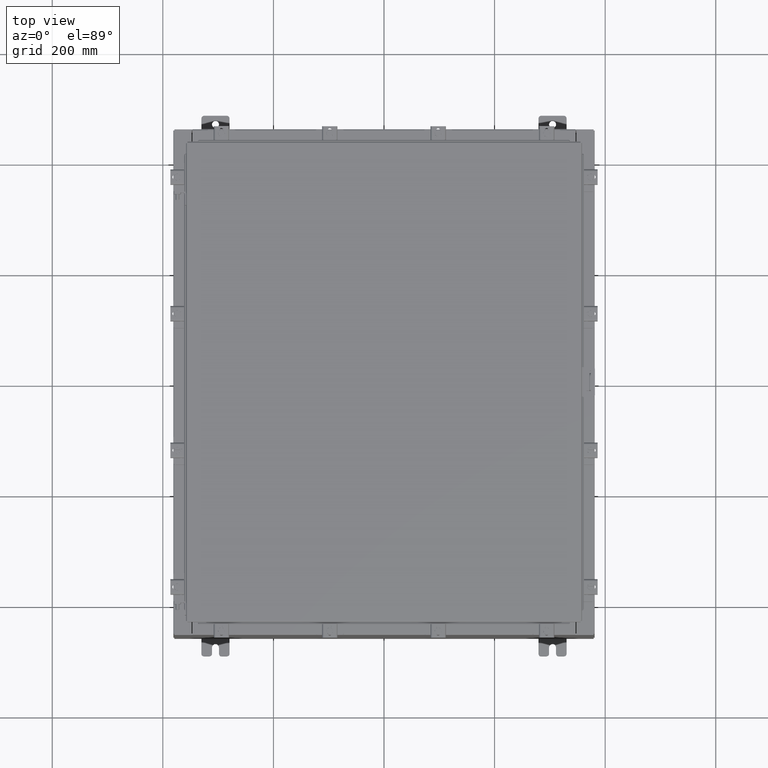
[diagram: clean part render]
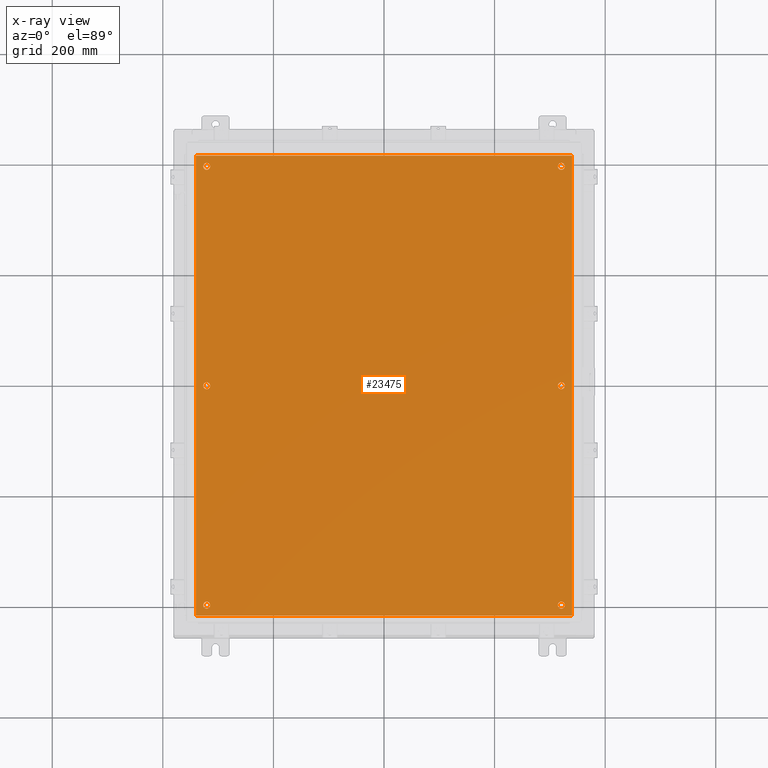
[diagram: x-ray — body ghosted, one internal face saturated and labeled with its STEP entity id]
A machine part, top view, then the same camera in x-ray: the body is ghosted and one INTERNAL B-rep face — a face not visible from any outside direction — is saturated and labeled: STEP entity #23475.
In plain terms, the highlighted planar face has unit normal (0, 0, -1).
Its self-contained STEP definition (entity closure, byte-faithful):
#72 = DIRECTION ( 'NONE',  ( 0.0000000000000000000, 0.0000000000000000000, -1.000000000000000000 ) ) ;
#118 = DIRECTION ( 'NONE',  ( -1.000000000000000000, 0.0000000000000000000, 0.0000000000000000000 ) ) ;
#183 = CARTESIAN_POINT ( 'NONE',  ( -12.87500000000000500, -15.62500000000000400, -0.1039999999999999800 ) ) ;
#197 = EDGE_LOOP ( 'NONE', ( #3652, #11921 ) ) ;
#271 = CARTESIAN_POINT ( 'NONE',  ( -12.87500000000000500, 15.62500000000000400, -0.1039999999999999800 ) ) ;
#518 = VERTEX_POINT ( 'NONE', #6881 ) ;
#705 = AXIS2_PLACEMENT_3D ( 'NONE', #14858, #3580, #16745 ) ;
#734 = DIRECTION ( 'NONE',  ( -0.0000000000000000000, -0.0000000000000000000, 1.000000000000000000 ) ) ;
#1117 = FACE_BOUND ( 'NONE', #20579, .T. ) ;
#1125 = CARTESIAN_POINT ( 'NONE',  ( 12.62500000000000400, -15.62500000000000400, -0.1039999999999999800 ) ) ;
#1126 = CARTESIAN_POINT ( 'NONE',  ( 12.62500000000000400, 15.62500000000000400, -0.1039999999999999800 ) ) ;
#1264 = CARTESIAN_POINT ( 'NONE',  ( 12.87500000000000500, -15.62500000000000400, -0.1039999999999999800 ) ) ;
#1395 = VERTEX_POINT ( 'NONE', #12832 ) ;
#1639 = DIRECTION ( 'NONE',  ( -1.000000000000000000, 0.0000000000000000000, 0.0000000000000000000 ) ) ;
#1652 = DIRECTION ( 'NONE',  ( -0.0000000000000000000, -0.0000000000000000000, 1.000000000000000000 ) ) ;
#1721 = ORIENTED_EDGE ( 'NONE', *, *, #19573, .T. ) ;
#2145 = CARTESIAN_POINT ( 'NONE',  ( 12.87500000000000400, 3.355087480100814800E-015, -0.1039999999999999800 ) ) ;
#2187 = EDGE_CURVE ( 'NONE', #12451, #21319, #8120, .T. ) ;
#2517 = CARTESIAN_POINT ( 'NONE',  ( 12.37500000000000400, 15.62500000000000400, -0.1039999999999999800 ) ) ;
#2565 = CARTESIAN_POINT ( 'NONE',  ( -12.62500000000000400, -15.62500000000000400, -0.1039999999999999800 ) ) ;
#2621 = VERTEX_POINT ( 'NONE', #21686 ) ;
#2790 = AXIS2_PLACEMENT_3D ( 'NONE', #12021, #734, #13945 ) ;
#3059 = DIRECTION ( 'NONE',  ( -1.000000000000000000, 0.0000000000000000000, 0.0000000000000000000 ) ) ;
#3061 = DIRECTION ( 'NONE',  ( -1.000000000000000000, 0.0000000000000000000, 0.0000000000000000000 ) ) ;
#3079 = CIRCLE ( 'NONE', #5820, 0.2500000000000008900 ) ;
#3356 = CARTESIAN_POINT ( 'NONE',  ( -12.62500000000000400, -15.62500000000000400, -0.1039999999999999800 ) ) ;
#3580 = DIRECTION ( 'NONE',  ( -0.0000000000000000000, -0.0000000000000000000, 1.000000000000000000 ) ) ;
#3652 = ORIENTED_EDGE ( 'NONE', *, *, #13378, .T. ) ;
#4010 = EDGE_CURVE ( 'NONE', #11887, #20556, #18988, .T. ) ;
#4151 = CARTESIAN_POINT ( 'NONE',  ( 13.38299999999999900, -16.38300000000000300, -0.1040000000000009100 ) ) ;
#4196 = AXIS2_PLACEMENT_3D ( 'NONE', #22766, #11418, #118 ) ;
#4450 = VECTOR ( 'NONE', #15800, 39.37007874015748100 ) ;
#4498 = DIRECTION ( 'NONE',  ( -1.000000000000000000, 0.0000000000000000000, 0.0000000000000000000 ) ) ;
#5171 = CARTESIAN_POINT ( 'NONE',  ( 13.50000000000000000, 16.38299999999999900, -0.1040000000000009100 ) ) ;
#5262 = DIRECTION ( 'NONE',  ( -1.000000000000000000, 0.0000000000000000000, 0.0000000000000000000 ) ) ;
#5571 = VECTOR ( 'NONE', #18353, 39.37007874015748100 ) ;
#5728 = CARTESIAN_POINT ( 'NONE',  ( 0.0000000000000000000, 0.0000000000000000000, -0.1039999999999999800 ) ) ;
#5820 = AXIS2_PLACEMENT_3D ( 'NONE', #2565, #15740, #4498 ) ;
#5909 = VECTOR ( 'NONE', #10453, 39.37007874015748100 ) ;
#6007 = ORIENTED_EDGE ( 'NONE', *, *, #13915, .T. ) ;
#6038 = VERTEX_POINT ( 'NONE', #15150 ) ;
#6137 = CIRCLE ( 'NONE', #4196, 0.2500000000000008900 ) ;
#6162 = FACE_BOUND ( 'NONE', #19005, .T. ) ;
#6415 = EDGE_CURVE ( 'NONE', #15051, #17039, #20950, .T. ) ;
#6676 = ORIENTED_EDGE ( 'NONE', *, *, #2187, .T. ) ;
#6738 = CARTESIAN_POINT ( 'NONE',  ( -13.50000000000000000, -16.38299999999999900, -0.1040000000000020100 ) ) ;
#6881 = CARTESIAN_POINT ( 'NONE',  ( -12.37500000000000400, -15.62500000000000400, -0.1039999999999999800 ) ) ;
#7415 = ORIENTED_EDGE ( 'NONE', *, *, #13524, .T. ) ;
#7740 = CARTESIAN_POINT ( 'NONE',  ( 12.87500000000000500, 15.62500000000000400, -0.1039999999999999800 ) ) ;
#7907 = ORIENTED_EDGE ( 'NONE', *, *, #11406, .T. ) ;
#7939 = EDGE_CURVE ( 'NONE', #20556, #11887, #16780, .T. ) ;
#8120 = CIRCLE ( 'NONE', #23888, 0.2500000000000008900 ) ;
#8154 = AXIS2_PLACEMENT_3D ( 'NONE', #5728, #72, #13282 ) ;
#8424 = CARTESIAN_POINT ( 'NONE',  ( -12.87500000000000400, 2.934704822324311800E-016, -0.1039999999999999800 ) ) ;
#8490 = EDGE_CURVE ( 'NONE', #2621, #1395, #21798, .T. ) ;
#8510 = ORIENTED_EDGE ( 'NONE', *, *, #7939, .T. ) ;
#8956 = VERTEX_POINT ( 'NONE', #13860 ) ;
#10140 = VERTEX_POINT ( 'NONE', #271 ) ;
#10384 = ORIENTED_EDGE ( 'NONE', *, *, #6415, .F. ) ;
#10442 = CARTESIAN_POINT ( 'NONE',  ( -12.62500000000000400, 15.62500000000000400, -0.1039999999999999800 ) ) ;
#10453 = DIRECTION ( 'NONE',  ( 1.000000000000000000, -0.0000000000000000000, -0.0000000000000000000 ) ) ;
#10576 = CARTESIAN_POINT ( 'NONE',  ( 12.37500000000000400, -15.62500000000000400, -0.1039999999999999800 ) ) ;
#10875 = DIRECTION ( 'NONE',  ( -0.0000000000000000000, -0.0000000000000000000, 1.000000000000000000 ) ) ;
#11104 = DIRECTION ( 'NONE',  ( -0.0000000000000000000, -0.0000000000000000000, 1.000000000000000000 ) ) ;
#11406 = EDGE_CURVE ( 'NONE', #22432, #518, #3079, .T. ) ;
#11418 = DIRECTION ( 'NONE',  ( -0.0000000000000000000, -0.0000000000000000000, 1.000000000000000000 ) ) ;
#11751 = FACE_BOUND ( 'NONE', #197, .T. ) ;
#11887 = VERTEX_POINT ( 'NONE', #7740 ) ;
#11921 = ORIENTED_EDGE ( 'NONE', *, *, #13015, .T. ) ;
#12021 = CARTESIAN_POINT ( 'NONE',  ( 12.62500000000000200, 3.355087480100814800E-015, -0.1039999999999999800 ) ) ;
#12094 = CARTESIAN_POINT ( 'NONE',  ( 13.38299999999999900, -16.38300000000000300, -0.1040000000000009100 ) ) ;
#12316 = DIRECTION ( 'NONE',  ( -1.000000000000000000, 0.0000000000000000000, 0.0000000000000000000 ) ) ;
#12451 = VERTEX_POINT ( 'NONE', #17020 ) ;
#12604 = ORIENTED_EDGE ( 'NONE', *, *, #4010, .T. ) ;
#12832 = CARTESIAN_POINT ( 'NONE',  ( -13.38300000000000300, 16.38299999999998800, -0.1040000000000063800 ) ) ;
#12844 = VERTEX_POINT ( 'NONE', #10576 ) ;
#12932 = DIRECTION ( 'NONE',  ( -0.0000000000000000000, -0.0000000000000000000, 1.000000000000000000 ) ) ;
#12944 = CARTESIAN_POINT ( 'NONE',  ( -12.62500000000000400, 15.62500000000000400, -0.1039999999999999800 ) ) ;
#13015 = EDGE_CURVE ( 'NONE', #6038, #18984, #14806, .T. ) ;
#13282 = DIRECTION ( 'NONE',  ( -1.000000000000000000, 0.0000000000000000000, -0.0000000000000000000 ) ) ;
#13378 = EDGE_CURVE ( 'NONE', #18984, #6038, #22911, .T. ) ;
#13524 = EDGE_CURVE ( 'NONE', #12844, #16300, #14896, .T. ) ;
#13691 = ORIENTED_EDGE ( 'NONE', *, *, #19815, .T. ) ;
#13789 = VECTOR ( 'NONE', #13898, 39.37007874015748100 ) ;
#13860 = CARTESIAN_POINT ( 'NONE',  ( -12.37500000000000400, 15.62500000000000400, -0.1039999999999999800 ) ) ;
#13898 = DIRECTION ( 'NONE',  ( 0.0000000000000000000, -1.000000000000000000, 0.0000000000000000000 ) ) ;
#13915 = EDGE_CURVE ( 'NONE', #16300, #12844, #23494, .T. ) ;
#13945 = DIRECTION ( 'NONE',  ( -1.000000000000000000, 0.0000000000000000000, 0.0000000000000000000 ) ) ;
#14347 = DIRECTION ( 'NONE',  ( -0.0000000000000000000, -0.0000000000000000000, 1.000000000000000000 ) ) ;
#14351 = DIRECTION ( 'NONE',  ( -0.0000000000000000000, -0.0000000000000000000, 1.000000000000000000 ) ) ;
#14806 = CIRCLE ( 'NONE', #705, 0.2500000000000008900 ) ;
#14842 = DIRECTION ( 'NONE',  ( -1.000000000000000000, 0.0000000000000000000, 0.0000000000000000000 ) ) ;
#14858 = CARTESIAN_POINT ( 'NONE',  ( 12.62500000000000200, 3.355087480100814800E-015, -0.1039999999999999800 ) ) ;
#14896 = CIRCLE ( 'NONE', #18287, 0.2500000000000008900 ) ;
#15027 = LINE ( 'NONE', #12094, #4450 ) ;
#15051 = VERTEX_POINT ( 'NONE', #21549 ) ;
#15150 = CARTESIAN_POINT ( 'NONE',  ( 12.37500000000000200, 3.385703650079498500E-015, -0.1039999999999999800 ) ) ;
#15563 = FACE_OUTER_BOUND ( 'NONE', #17778, .T. ) ;
#15740 = DIRECTION ( 'NONE',  ( -0.0000000000000000000, -0.0000000000000000000, 1.000000000000000000 ) ) ;
#15800 = DIRECTION ( 'NONE',  ( 0.0000000000000000000, 1.000000000000000000, 0.0000000000000000000 ) ) ;
#15801 = AXIS2_PLACEMENT_3D ( 'NONE', #3356, #16512, #5262 ) ;
#15961 = CIRCLE ( 'NONE', #20304, 0.2500000000000008900 ) ;
#16169 = FACE_BOUND ( 'NONE', #20960, .T. ) ;
#16272 = EDGE_LOOP ( 'NONE', ( #13691, #20086 ) ) ;
#16300 = VERTEX_POINT ( 'NONE', #1264 ) ;
#16512 = DIRECTION ( 'NONE',  ( -0.0000000000000000000, -0.0000000000000000000, 1.000000000000000000 ) ) ;
#16745 = DIRECTION ( 'NONE',  ( -1.000000000000000000, 0.0000000000000000000, 0.0000000000000000000 ) ) ;
#16780 = CIRCLE ( 'NONE', #24130, 0.2500000000000008900 ) ;
#17020 = CARTESIAN_POINT ( 'NONE',  ( -12.37500000000000200, 2.628543122537475400E-016, -0.1039999999999999800 ) ) ;
#17039 = VERTEX_POINT ( 'NONE', #4151 ) ;
#17186 = EDGE_CURVE ( 'NONE', #17039, #2621, #15027, .T. ) ;
#17778 = EDGE_LOOP ( 'NONE', ( #10384, #20752, #23485, #23825 ) ) ;
#18006 = EDGE_CURVE ( 'NONE', #518, #22432, #20661, .T. ) ;
#18287 = AXIS2_PLACEMENT_3D ( 'NONE', #1125, #14347, #3059 ) ;
#18353 = DIRECTION ( 'NONE',  ( -1.000000000000000000, -0.0000000000000000000, -0.0000000000000000000 ) ) ;
#18984 = VERTEX_POINT ( 'NONE', #2145 ) ;
#18988 = CIRCLE ( 'NONE', #22328, 0.2500000000000008900 ) ;
#19005 = EDGE_LOOP ( 'NONE', ( #6676, #1721 ) ) ;
#19526 = CARTESIAN_POINT ( 'NONE',  ( -13.38300000000000300, 16.38299999999998800, -0.1040000000000063800 ) ) ;
#19573 = EDGE_CURVE ( 'NONE', #21319, #12451, #6137, .T. ) ;
#19709 = EDGE_CURVE ( 'NONE', #1395, #15051, #20002, .T. ) ;
#19815 = EDGE_CURVE ( 'NONE', #8956, #10140, #22075, .T. ) ;
#20002 = LINE ( 'NONE', #19526, #13789 ) ;
#20086 = ORIENTED_EDGE ( 'NONE', *, *, #21550, .T. ) ;
#20304 = AXIS2_PLACEMENT_3D ( 'NONE', #12944, #1652, #14842 ) ;
#20556 = VERTEX_POINT ( 'NONE', #2517 ) ;
#20579 = EDGE_LOOP ( 'NONE', ( #12604, #8510 ) ) ;
#20622 = FACE_BOUND ( 'NONE', #16272, .T. ) ;
#20661 = CIRCLE ( 'NONE', #15801, 0.2500000000000008900 ) ;
#20752 = ORIENTED_EDGE ( 'NONE', *, *, #19709, .F. ) ;
#20950 = LINE ( 'NONE', #6738, #5909 ) ;
#20960 = EDGE_LOOP ( 'NONE', ( #6007, #7415 ) ) ;
#21227 = FACE_BOUND ( 'NONE', #23124, .T. ) ;
#21319 = VERTEX_POINT ( 'NONE', #8424 ) ;
#21549 = CARTESIAN_POINT ( 'NONE',  ( -13.38300000000000300, -16.38299999999999900, -0.1040000000000020100 ) ) ;
#21550 = EDGE_CURVE ( 'NONE', #10140, #8956, #15961, .T. ) ;
#21686 = CARTESIAN_POINT ( 'NONE',  ( 13.38299999999999900, 16.38300000000000300, -0.1040000000000009100 ) ) ;
#21798 = LINE ( 'NONE', #5171, #5571 ) ;
#22075 = CIRCLE ( 'NONE', #23165, 0.2500000000000008900 ) ;
#22198 = CARTESIAN_POINT ( 'NONE',  ( 12.62500000000000400, -15.62500000000000400, -0.1039999999999999800 ) ) ;
#22328 = AXIS2_PLACEMENT_3D ( 'NONE', #1126, #14351, #3061 ) ;
#22432 = VERTEX_POINT ( 'NONE', #183 ) ;
#22436 = CARTESIAN_POINT ( 'NONE',  ( 12.62500000000000400, 15.62500000000000400, -0.1039999999999999800 ) ) ;
#22719 = PLANE ( 'NONE',  #8154 ) ;
#22766 = CARTESIAN_POINT ( 'NONE',  ( -12.62500000000000200, 2.628543122537475400E-016, -0.1039999999999999800 ) ) ;
#22905 = AXIS2_PLACEMENT_3D ( 'NONE', #22198, #10875, #24117 ) ;
#22911 = CIRCLE ( 'NONE', #2790, 0.2500000000000008900 ) ;
#23124 = EDGE_LOOP ( 'NONE', ( #23983, #7907 ) ) ;
#23165 = AXIS2_PLACEMENT_3D ( 'NONE', #10442, #23672, #12316 ) ;
#23475 = ADVANCED_FACE ( 'NONE', ( #11751, #6162, #21227, #16169, #1117, #20622, #15563 ), #22719, .T. ) ;
#23485 = ORIENTED_EDGE ( 'NONE', *, *, #8490, .F. ) ;
#23494 = CIRCLE ( 'NONE', #22905, 0.2500000000000008900 ) ;
#23672 = DIRECTION ( 'NONE',  ( -0.0000000000000000000, -0.0000000000000000000, 1.000000000000000000 ) ) ;
#23825 = ORIENTED_EDGE ( 'NONE', *, *, #17186, .F. ) ;
#23888 = AXIS2_PLACEMENT_3D ( 'NONE', #24275, #12932, #1639 ) ;
#23983 = ORIENTED_EDGE ( 'NONE', *, *, #18006, .T. ) ;
#24117 = DIRECTION ( 'NONE',  ( -1.000000000000000000, 0.0000000000000000000, 0.0000000000000000000 ) ) ;
#24130 = AXIS2_PLACEMENT_3D ( 'NONE', #22436, #11104, #24350 ) ;
#24275 = CARTESIAN_POINT ( 'NONE',  ( -12.62500000000000200, 2.628543122537475400E-016, -0.1039999999999999800 ) ) ;
#24350 = DIRECTION ( 'NONE',  ( -1.000000000000000000, 0.0000000000000000000, 0.0000000000000000000 ) ) ;